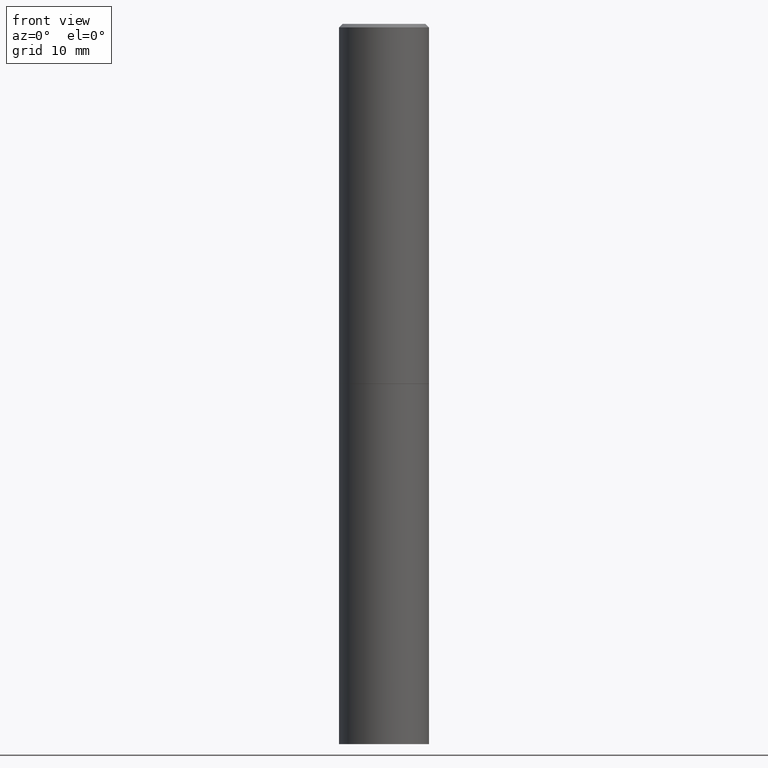
[diagram: clean part render]
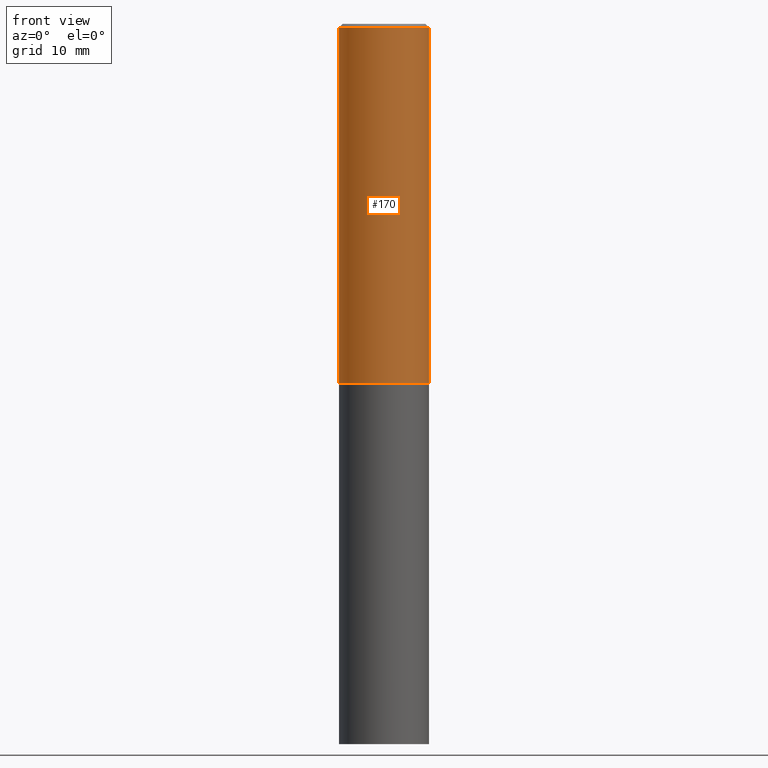
[diagram: same view with one face highlighted and labeled with its STEP entity id]
A machine part, front view. The second image highlights one B-rep face of the part: STEP entity #170.
In plain terms, the highlighted cylindrical surface (partial cylindrical patch) has radius 6.35 mm, axis along (-0, 0, 1).
Its self-contained STEP definition (entity closure, byte-faithful):
#5 = CARTESIAN_POINT ( 'NONE',  ( 0.2499999999999998890, -1.745740669421565889E-15, 1.219044193948983388E-29 ) ) ;
#12 = VERTEX_POINT ( 'NONE', #263 ) ;
#15 = CARTESIAN_POINT ( 'NONE',  ( 0.000000000000000000, 0.000000000000000000, 0.000000000000000000 ) ) ;
#21 = CYLINDRICAL_SURFACE ( 'NONE', #63, 0.2499999999999998890 ) ;
#25 = EDGE_CURVE ( 'NONE', #12, #246, #107, .T. ) ;
#26 = CARTESIAN_POINT ( 'NONE',  ( 0.2500000000000000000, -8.725211865769014047E-15, -1.998999999999999888 ) ) ;
#28 = DIRECTION ( 'NONE',  ( -2.445468806185136597E-29, 3.491481338843145583E-15, 1.000000000000000000 ) ) ;
#34 = DIRECTION ( 'NONE',  ( 1.000000000000000000, -6.982962677686266711E-15, 4.876176775795935793E-29 ) ) ;
#38 = LINE ( 'NONE', #5, #345 ) ;
#63 = AXIS2_PLACEMENT_3D ( 'NONE', #15, #137, #34 ) ;
#65 = DIRECTION ( 'NONE',  ( 1.000000000000000000, -6.982962677686266711E-15, 0.000000000000000000 ) ) ;
#76 = CARTESIAN_POINT ( 'NONE',  ( -0.2499999999999998890, 1.776356839400249676E-15, -1.229733772563726025E-29 ) ) ;
#80 = ORIENTED_EDGE ( 'NONE', *, *, #347, .T. ) ;
#98 = VERTEX_POINT ( 'NONE', #26 ) ;
#107 = LINE ( 'NONE', #76, #312 ) ;
#115 = VERTEX_POINT ( 'NONE', #363 ) ;
#126 = FACE_OUTER_BOUND ( 'NONE', #151, .T. ) ;
#130 = CIRCLE ( 'NONE', #260, 0.2500000000000000000 ) ;
#137 = DIRECTION ( 'NONE',  ( -2.445468806185136597E-29, 3.491481338843145583E-15, 1.000000000000000000 ) ) ;
#139 = ORIENTED_EDGE ( 'NONE', *, *, #149, .F. ) ;
#141 = CARTESIAN_POINT ( 'NONE',  ( 4.888492143564087591E-29, -6.979471196347447369E-15, -1.998999999999999888 ) ) ;
#147 = DIRECTION ( 'NONE',  ( -2.445468806185136877E-29, 3.491481338843145188E-15, 1.000000000000000000 ) ) ;
#149 = EDGE_CURVE ( 'NONE', #246, #115, #193, .T. ) ;
#151 = EDGE_LOOP ( 'NONE', ( #325, #205, #80, #139 ) ) ;
#170 = ADVANCED_FACE ( 'NONE', ( #126 ), #21, .T. ) ;
#183 = DIRECTION ( 'NONE',  ( -2.445468806185136877E-29, 3.491481338843145188E-15, 1.000000000000000000 ) ) ;
#191 = EDGE_CURVE ( 'NONE', #12, #98, #130, .T. ) ;
#193 = CIRCLE ( 'NONE', #349, 0.2499999999999998057 ) ;
#205 = ORIENTED_EDGE ( 'NONE', *, *, #191, .T. ) ;
#217 = DIRECTION ( 'NONE',  ( -2.445468806185136597E-29, 3.491481338843145583E-15, 1.000000000000000000 ) ) ;
#246 = VERTEX_POINT ( 'NONE', #296 ) ;
#260 = AXIS2_PLACEMENT_3D ( 'NONE', #141, #28, #275 ) ;
#263 = CARTESIAN_POINT ( 'NONE',  ( -0.2500000000000000000, -1.748293572161903489E-15, -1.998999999999999888 ) ) ;
#275 = DIRECTION ( 'NONE',  ( 1.000000000000000000, -6.982962677686266711E-15, 0.000000000000000000 ) ) ;
#296 = CARTESIAN_POINT ( 'NONE',  ( -0.2499999999999998057, 1.675911042644702196E-15, -0.02000000000000005246 ) ) ;
#307 = CARTESIAN_POINT ( 'NONE',  ( 4.890937612370285420E-31, -6.982962677686308865E-17, -0.02000000000000005246 ) ) ;
#312 = VECTOR ( 'NONE', #183, 39.37007874015748143 ) ;
#325 = ORIENTED_EDGE ( 'NONE', *, *, #25, .F. ) ;
#345 = VECTOR ( 'NONE', #147, 39.37007874015748143 ) ;
#347 = EDGE_CURVE ( 'NONE', #98, #115, #38, .T. ) ;
#349 = AXIS2_PLACEMENT_3D ( 'NONE', #307, #217, #65 ) ;
#363 = CARTESIAN_POINT ( 'NONE',  ( 0.2499999999999998057, -1.784954126219744611E-15, -0.02000000000000005246 ) ) ;